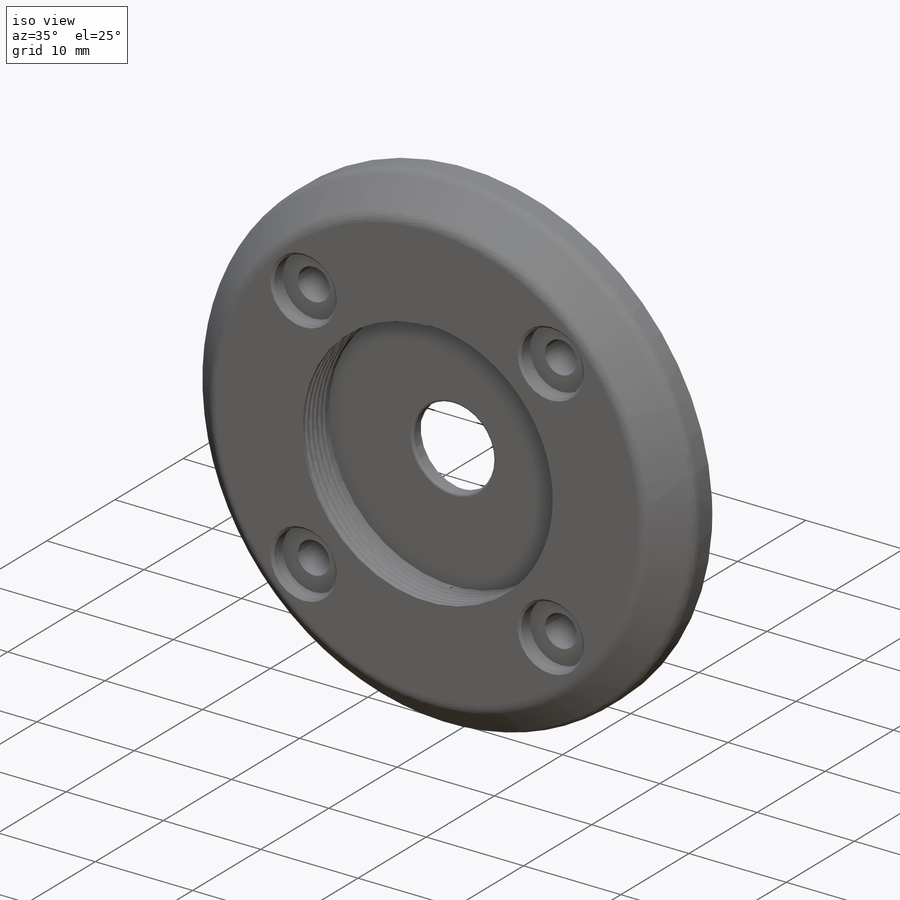
[diagram: iso view]
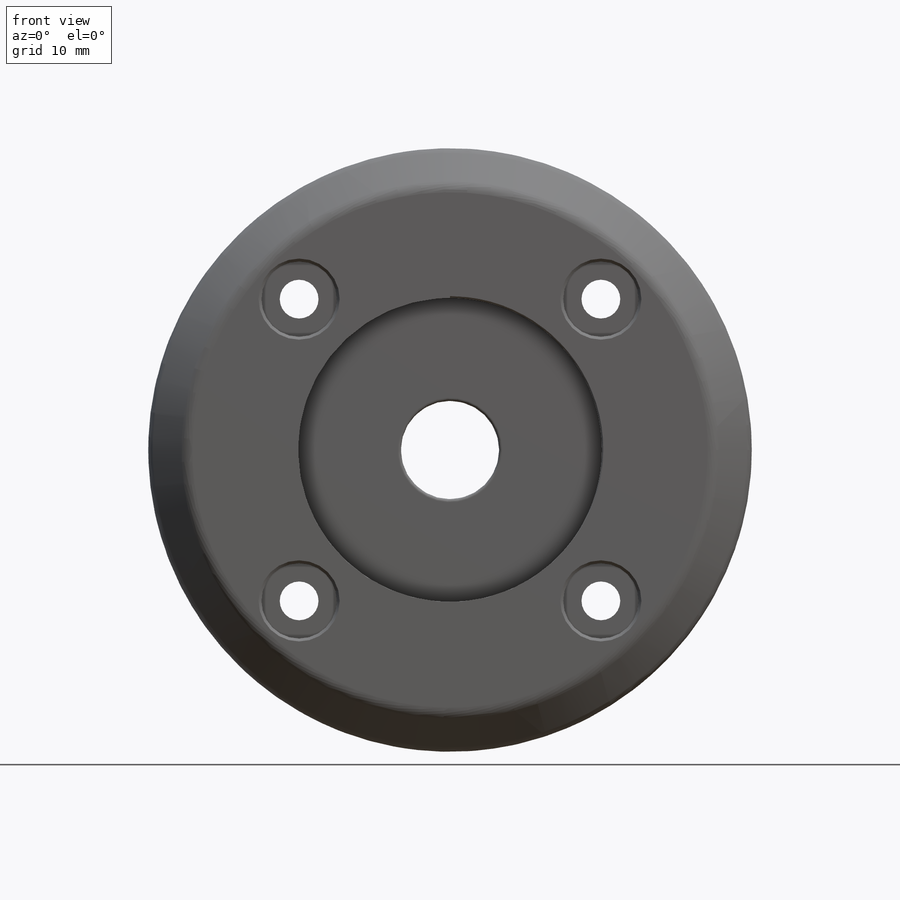
[diagram: front view]
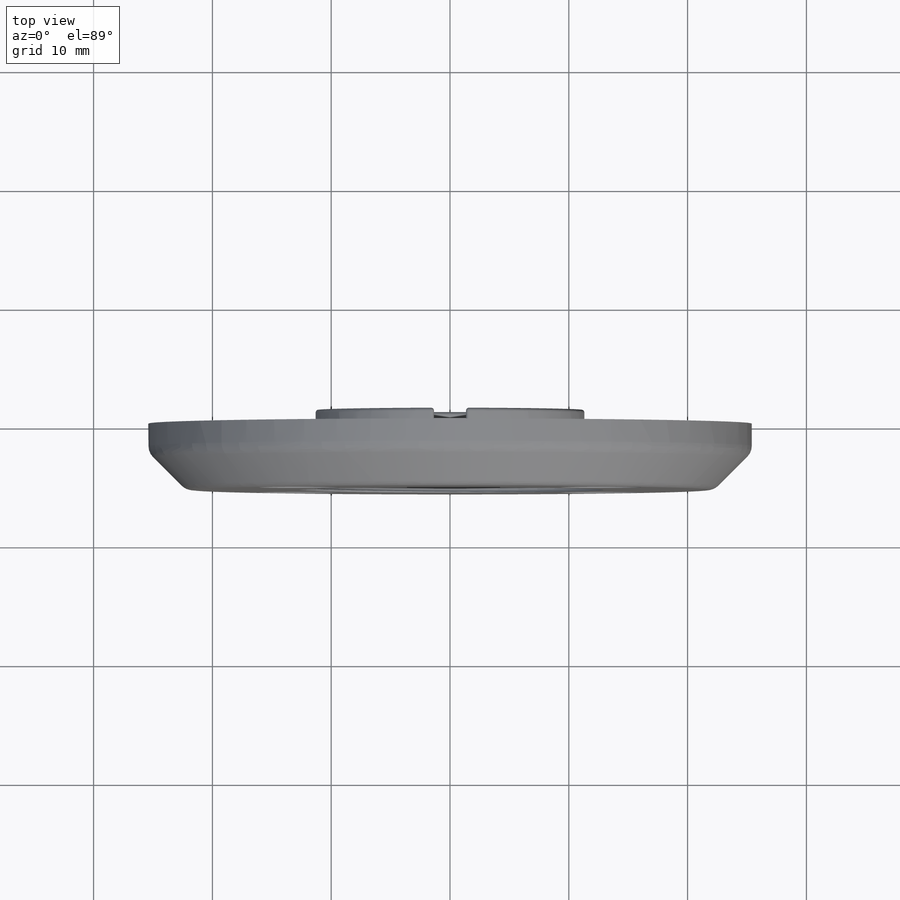
[diagram: top view]
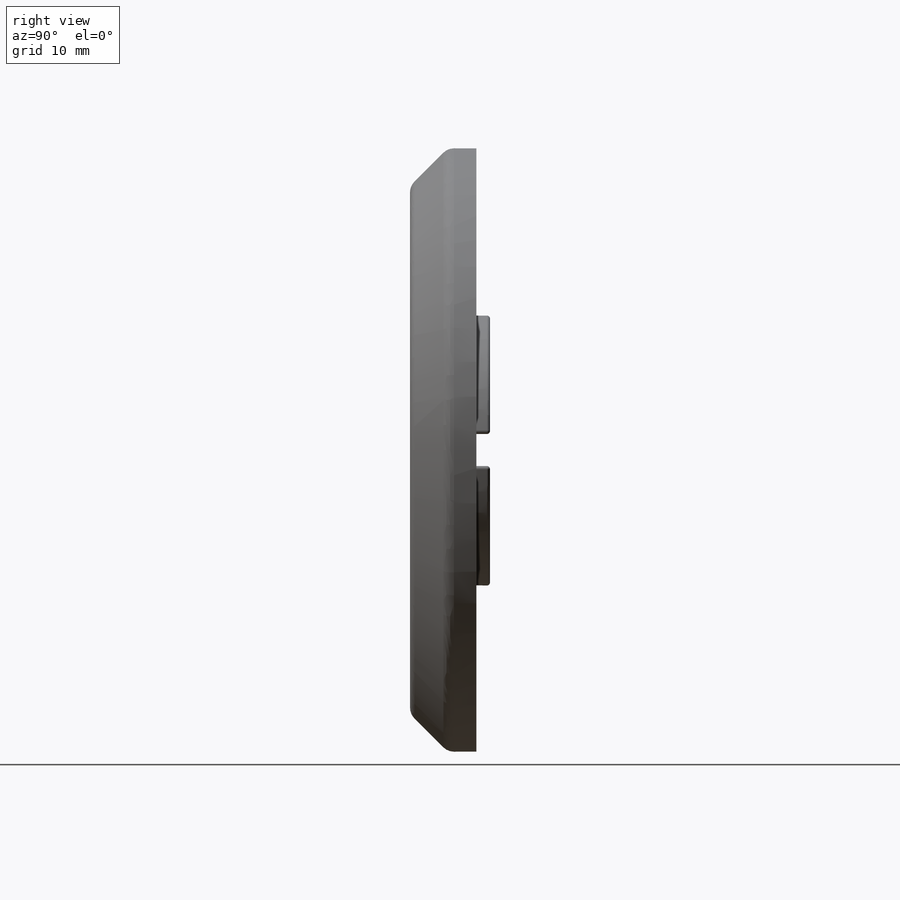
[diagram: right view]
SOLIDWORKS PART (.sldprt)
format: sldprt  version: not decoded by parser v0  size: 709,632 bytes
history: native  units: mm
features: sketch x10, fillet x6, cut_extrude x4, extrude x2, chamfer x2, material x1, hole x1, helix x1, sweep x1 + 1 further entry (+10 scaffold rows collapsed)
feature tree (39):
  scaffold x10  (default folders/planes/origin — collapsed)
  material  "Material <not specified>"
  "Origin"  ID=392984584
  sketch  "Sketch1"  dims[D1=50.8mm]
  extrude  "Boss-Extrude1"  Depth=5.588mm
  sketch  "Sketch2"  dims[D1=25.6032mm]
  cut_extrude  "Cut-Extrude1"  Depth=3.81mm
  hole  "CBORE for #4 Button Head Cap Screw1"  Diameter=3.2639mm Depth=5.588mm
  sketch  "Sketch6"  dims[D1=12.7mm D2=12.7mm D3=12.7mm D4=12.7mm D5=12.7mm D6=12.7mm D7=12.7mm D8=12.7mm]
  sketch  "Sketch5"  dims[hole-wizard template sketch: 42 standard entries collapsed; hole parameters kept: c12.Thru Hole Depth=5.588mm c12.C'Bore Dia.=6.35mm c12.C'Bore Depth=1.4986mm c12.Near C'Sink Dia.=~6.82752mm c12.D6=~4.399409mm c12.Near C'Sink Angle=90.0deg]
  sketch  "Sketch7"  dims[D1=8.2804mm]
  cut_extrude  "Cut-Extrude2"  [1 undecoded]
  sketch  "Sketch8"  dims[D1=9.144mm]
  chamfer  "Chamfer1"  Distance=3.175mm Angle=45deg
  fillet  "Fillet1"  Radius=1.27mm
  chamfer  "Chamfer2"  Distance=1.27mm Angle=45deg
  fillet  "Fillet2"  Radius=1.27mm
  cut_extrude  "Cut-Extrude5"  Depth=0.762mm
  sketch  "Sketch10"
  cut_extrude  "Cut-Extrude6"  Depth=0.762mm
  fillet  "Fillet3"  Radius=0.254mm
  fillet  "Fillet4"  Radius=0.254mm
  sketch  "Sketch12"  dims[c1.D1=10.795mm c1.D2=20.32mm c1.D3=22.86mm c2.D1=2.5908mm c2.D4=2.5908mm c3.D1=2.6924mm c3.D4=2.6924mm c3.D5=2.6924mm c3.D6=1.3462mm c3.D7=1.3462mm c3.D8=1.3462mm]
  extrude  "Boss-Extrude2"  Depth=1.143mm
  fillet  "Fillet5"  Radius=0.254mm
  fillet  "Fillet6"  Radius=0.254mm
  sketch  "Sketch14"  dims[D1=~16.341191mm]
  helix  "Helix/Spiral1"  Pitch=3.4925mm
  sketch  "Sketch15"
  sweep  "Cut-Sweep1"
decode coverage: 23 of 27 modeling features carry decoded parameters; 1 rows unclassified (native names shown)
note: ~ marks probable driven/reference dimensions
note: 1 parameter value undecoded
note: suppression state not decoded; provenance and decode notes live in map.json
